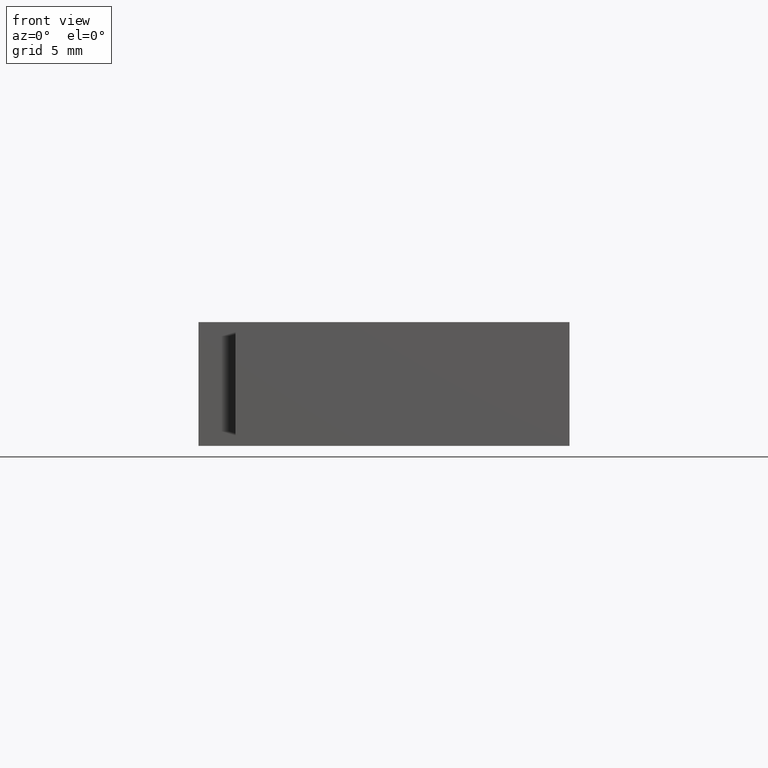
[diagram: clean part render]
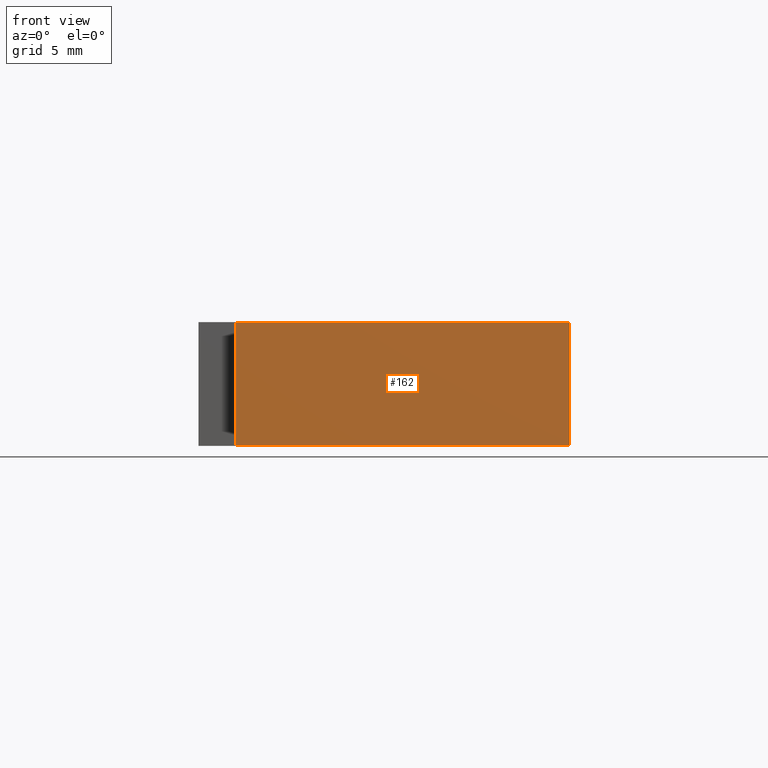
[diagram: same view with one face highlighted and labeled with its STEP entity id]
A machine part, front view. The second image highlights one B-rep face of the part: STEP entity #162.
In plain terms, the highlighted planar face has unit normal (0, -1, 0).
Its self-contained STEP definition (entity closure, byte-faithful):
#16=FACE_OUTER_BOUND('',#25,.T.);
#25=EDGE_LOOP('',(#117,#118,#119,#120));
#35=LINE('',#251,#56);
#40=LINE('',#262,#61);
#41=LINE('',#263,#62);
#42=LINE('',#264,#63);
#56=VECTOR('',#208,10.);
#61=VECTOR('',#215,10.);
#62=VECTOR('',#216,10.);
#63=VECTOR('',#217,10.);
#77=VERTEX_POINT('',#248);
#78=VERTEX_POINT('',#250);
#82=VERTEX_POINT('',#260);
#83=VERTEX_POINT('',#261);
#91=EDGE_CURVE('',#78,#77,#35,.T.);
#96=EDGE_CURVE('',#82,#83,#40,.T.);
#97=EDGE_CURVE('',#83,#78,#41,.T.);
#98=EDGE_CURVE('',#82,#77,#42,.T.);
#117=ORIENTED_EDGE('',*,*,#96,.T.);
#118=ORIENTED_EDGE('',*,*,#97,.T.);
#119=ORIENTED_EDGE('',*,*,#91,.T.);
#120=ORIENTED_EDGE('',*,*,#98,.F.);
#153=PLANE('',#194);
#162=ADVANCED_FACE('',(#16),#153,.T.);
#194=AXIS2_PLACEMENT_3D('',#259,#213,#214);
#208=DIRECTION('',(1.,8.34726660672951E-18,0.));
#213=DIRECTION('center_axis',(8.34726660672951E-18,-1.,0.));
#214=DIRECTION('ref_axis',(0.,0.,-1.));
#215=DIRECTION('',(-1.,-8.34726660672951E-18,0.));
#216=DIRECTION('',(0.,0.,-1.));
#217=DIRECTION('',(0.,0.,-1.));
#248=CARTESIAN_POINT('',(0.,1.53537805366403E-15,-5.));
#250=CARTESIAN_POINT('',(-27.,1.31000185528234E-15,-5.));
#251=CARTESIAN_POINT('',(0.,1.53537805366403E-15,-5.));
#259=CARTESIAN_POINT('Origin',(0.,1.53537805366403E-15,0.));
#260=CARTESIAN_POINT('',(0.,1.53537805366403E-15,5.));
#261=CARTESIAN_POINT('',(-27.,1.31000185528234E-15,5.));
#262=CARTESIAN_POINT('',(0.,1.53537805366403E-15,5.));
#263=CARTESIAN_POINT('',(-27.,1.31000185528234E-15,0.));
#264=CARTESIAN_POINT('',(0.,1.53537805366403E-15,0.));